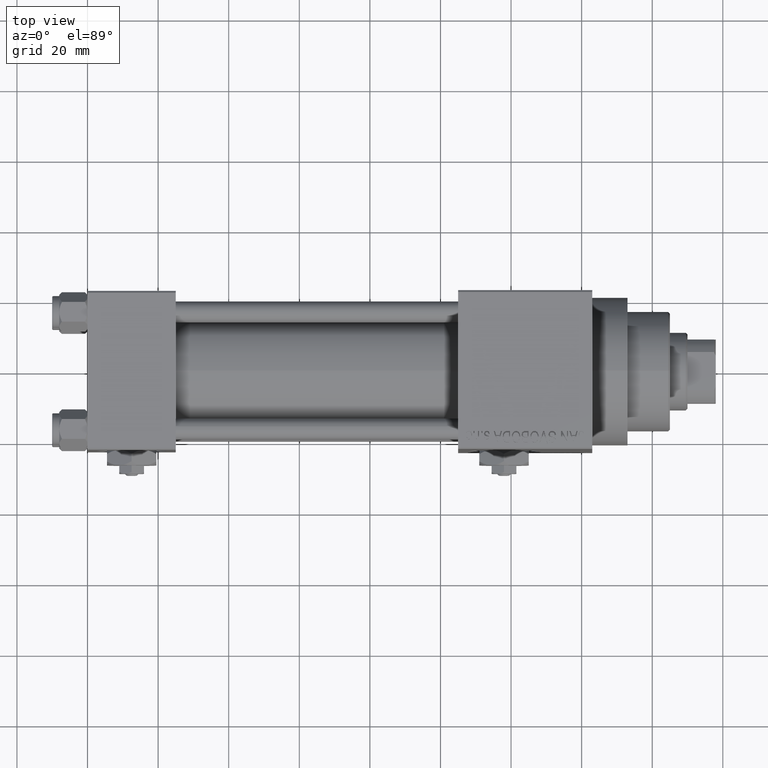
[diagram: clean part render]
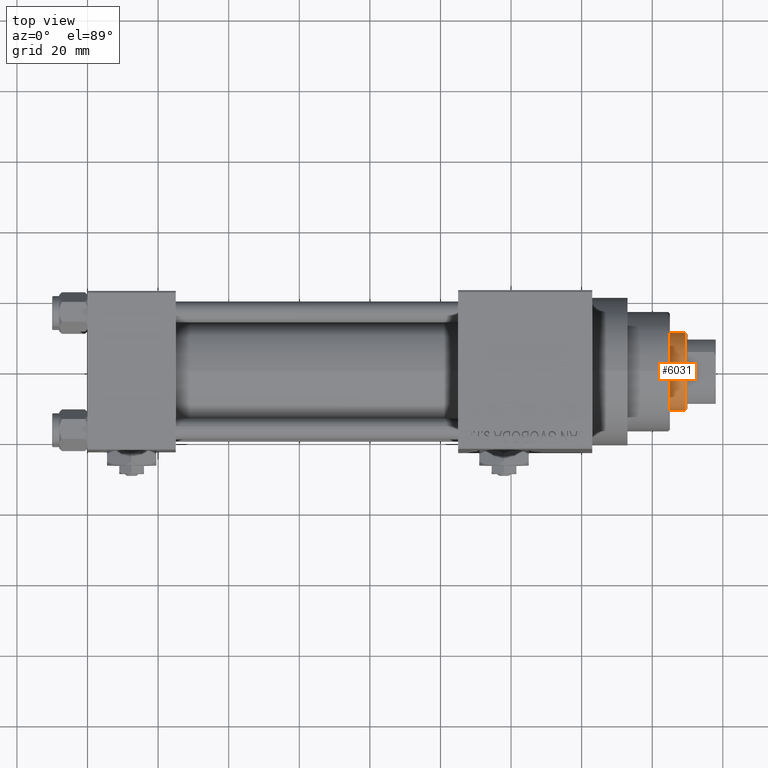
[diagram: same view with one face highlighted and labeled with its STEP entity id]
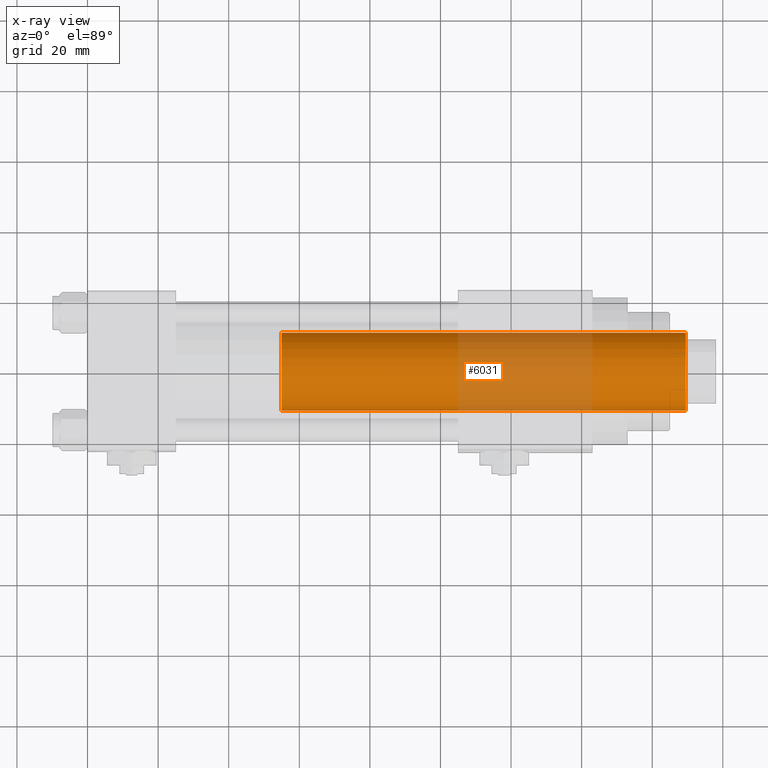
[diagram: x-ray of the same camera — body ghosted, the highlighted face saturated]
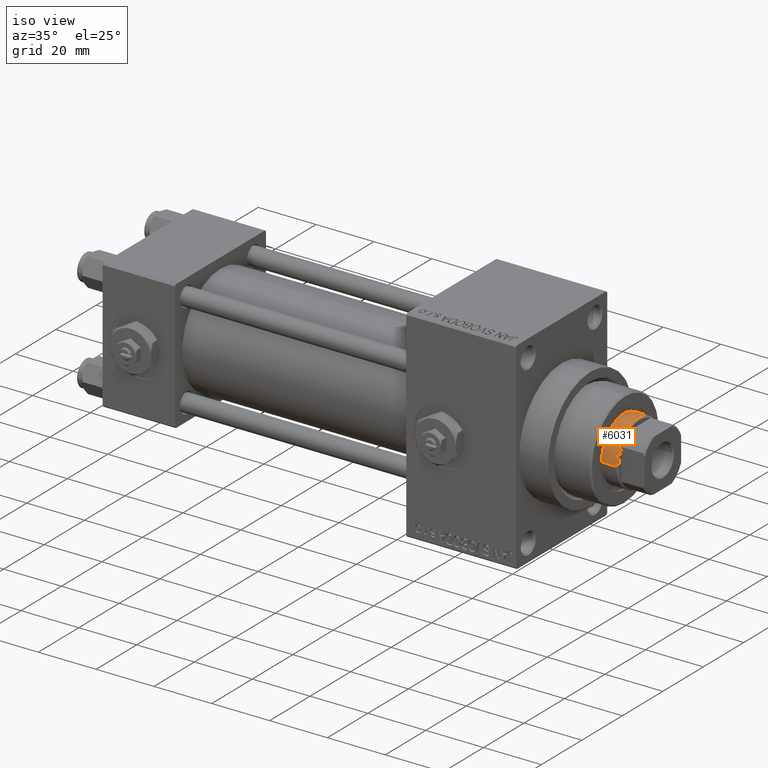
[diagram: same view with one face highlighted and labeled with its STEP entity id]
A machine part, top view. The second image highlights one B-rep face of the part: STEP entity #6031.
The next image is the same camera in x-ray: the body ghosted, the highlighted face saturated — about 33% of this face is hidden behind the body in this view.
A second angle (iso view) of the same face is appended — the face is thin or edge-on in the first view.
In plain terms, the highlighted cylindrical surface (partial cylindrical patch) has radius 11 mm, axis along (-1, 0, 0).
Its self-contained STEP definition (entity closure, byte-faithful):
#630 = ORIENTED_EDGE ( 'NONE', *, *, #2871, .F. ) ;
#1292 = EDGE_LOOP ( 'NONE', ( #630, #48213, #48290, #41740 ) ) ;
#2083 = CARTESIAN_POINT ( 'NONE',  ( 0.000000000000000000, 0.000000000000000000, 145.0000000000000284 ) ) ;
#2871 = EDGE_CURVE ( 'NONE', #28889, #39268, #30348, .T. ) ;
#6031 = ADVANCED_FACE ( 'NONE', ( #33400 ), #14260, .T. ) ;
#6720 = AXIS2_PLACEMENT_3D ( 'NONE', #20140, #32573, #27849 ) ;
#14260 = CYLINDRICAL_SURFACE ( 'NONE', #39680, 11.00000000000000000 ) ;
#16328 = AXIS2_PLACEMENT_3D ( 'NONE', #31347, #27851, #43002 ) ;
#16350 = EDGE_CURVE ( 'NONE', #28869, #19634, #37531, .T. ) ;
#16551 = VECTOR ( 'NONE', #33838, 1000.000000000000000 ) ;
#19634 = VERTEX_POINT ( 'NONE', #42890 ) ;
#20140 = CARTESIAN_POINT ( 'NONE',  ( 0.000000000000000000, 0.000000000000000000, 30.00000000000000000 ) ) ;
#27071 = DIRECTION ( 'NONE',  ( -0.000000000000000000, -0.000000000000000000, -1.000000000000000000 ) ) ;
#27849 = DIRECTION ( 'NONE',  ( 1.000000000000000000, 0.000000000000000000, 0.000000000000000000 ) ) ;
#27851 = DIRECTION ( 'NONE',  ( 0.000000000000000000, 0.000000000000000000, -1.000000000000000000 ) ) ;
#28869 = VERTEX_POINT ( 'NONE', #39736 ) ;
#28889 = VERTEX_POINT ( 'NONE', #47452 ) ;
#29427 = DIRECTION ( 'NONE',  ( -0.000000000000000000, -0.000000000000000000, -1.000000000000000000 ) ) ;
#30348 = LINE ( 'NONE', #41049, #16551 ) ;
#30499 = CIRCLE ( 'NONE', #6720, 11.00000000000000000 ) ;
#30952 = CARTESIAN_POINT ( 'NONE',  ( 11.00000000000000000, 1.347111479062088405E-15, 30.00000000000000000 ) ) ;
#31347 = CARTESIAN_POINT ( 'NONE',  ( 0.000000000000000000, 0.000000000000000000, 144.5000000000000284 ) ) ;
#32573 = DIRECTION ( 'NONE',  ( 0.000000000000000000, 0.000000000000000000, 1.000000000000000000 ) ) ;
#33121 = EDGE_CURVE ( 'NONE', #19634, #39268, #30499, .T. ) ;
#33400 = FACE_OUTER_BOUND ( 'NONE', #1292, .T. ) ;
#33838 = DIRECTION ( 'NONE',  ( -0.000000000000000000, -0.000000000000000000, -1.000000000000000000 ) ) ;
#35871 = EDGE_CURVE ( 'NONE', #28889, #28869, #44116, .T. ) ;
#37531 = LINE ( 'NONE', #38010, #45473 ) ;
#38010 = CARTESIAN_POINT ( 'NONE',  ( -11.00000000000000000, 0.000000000000000000, 145.0000000000000284 ) ) ;
#39268 = VERTEX_POINT ( 'NONE', #30952 ) ;
#39680 = AXIS2_PLACEMENT_3D ( 'NONE', #2083, #29427, #48065 ) ;
#39736 = CARTESIAN_POINT ( 'NONE',  ( -11.00000000000000000, 0.000000000000000000, 144.5000000000000284 ) ) ;
#41049 = CARTESIAN_POINT ( 'NONE',  ( 11.00000000000000000, 1.347111479062088405E-15, 145.0000000000000284 ) ) ;
#41740 = ORIENTED_EDGE ( 'NONE', *, *, #33121, .T. ) ;
#42890 = CARTESIAN_POINT ( 'NONE',  ( -11.00000000000000000, 0.000000000000000000, 30.00000000000000000 ) ) ;
#43002 = DIRECTION ( 'NONE',  ( 1.000000000000000000, 0.000000000000000000, 0.000000000000000000 ) ) ;
#44116 = CIRCLE ( 'NONE', #16328, 11.00000000000000000 ) ;
#45473 = VECTOR ( 'NONE', #27071, 1000.000000000000000 ) ;
#47452 = CARTESIAN_POINT ( 'NONE',  ( 11.00000000000000000, 1.347111479062088405E-15, 144.5000000000000284 ) ) ;
#48065 = DIRECTION ( 'NONE',  ( -1.000000000000000000, 0.000000000000000000, 0.000000000000000000 ) ) ;
#48213 = ORIENTED_EDGE ( 'NONE', *, *, #35871, .T. ) ;
#48290 = ORIENTED_EDGE ( 'NONE', *, *, #16350, .T. ) ;